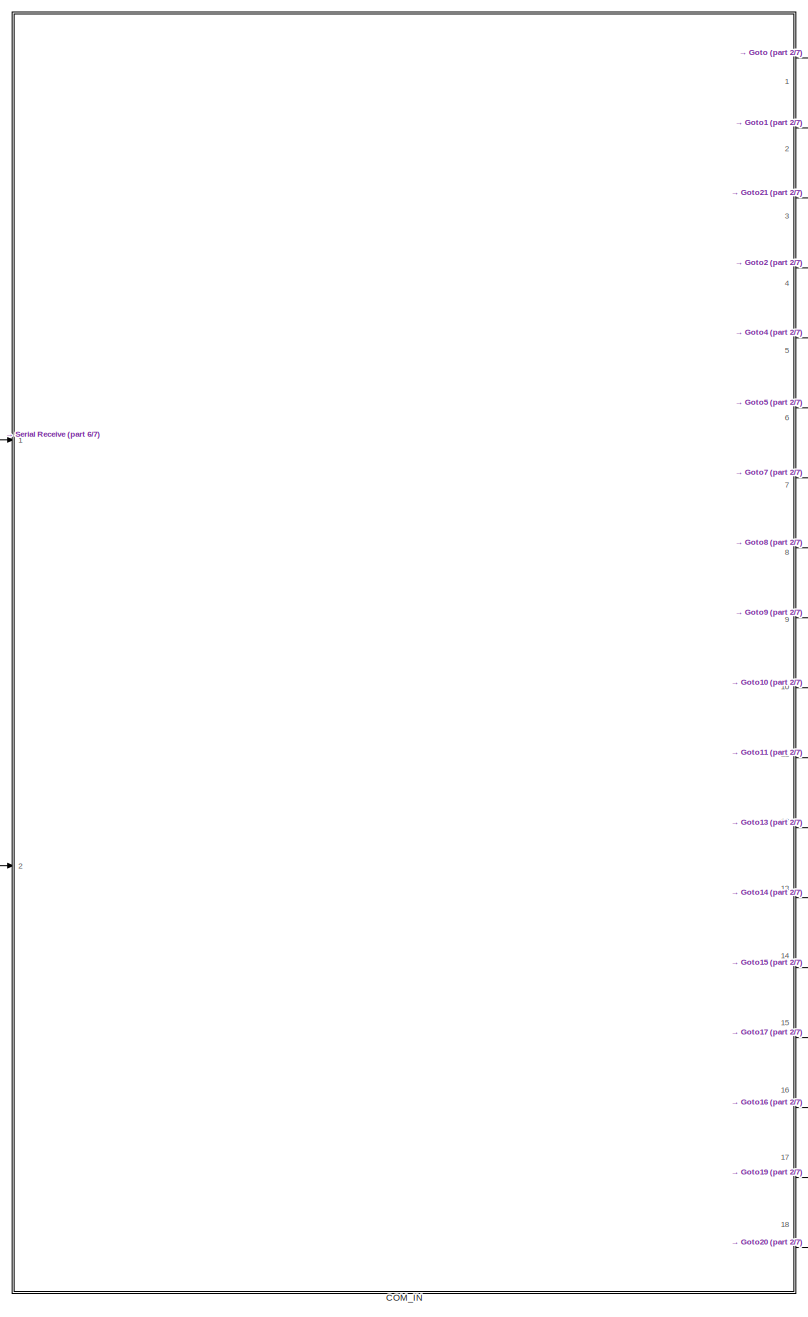
[diagram: root canvas - part 1/7, top left region]
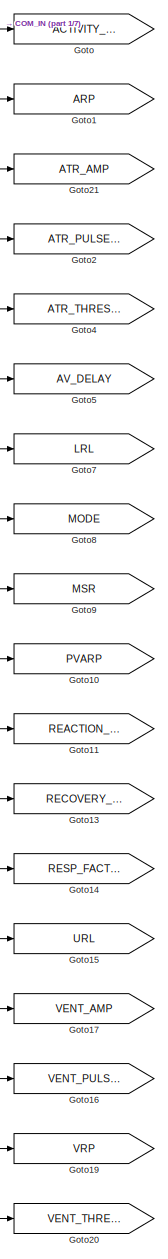
[diagram: root canvas - part 2/7, top center region]
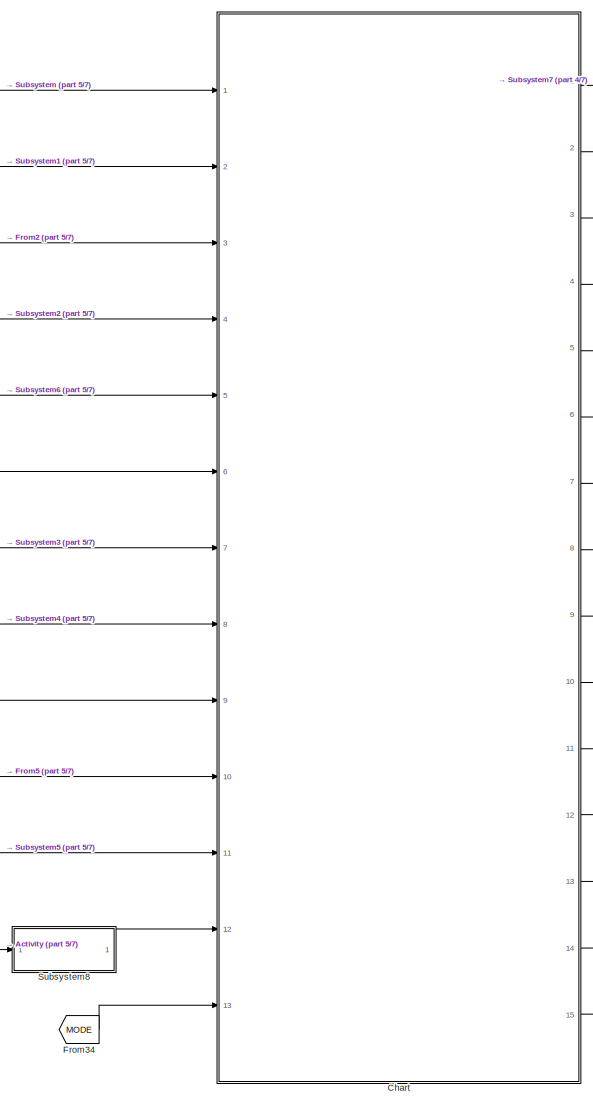
[diagram: root canvas - part 3/7, top right region]
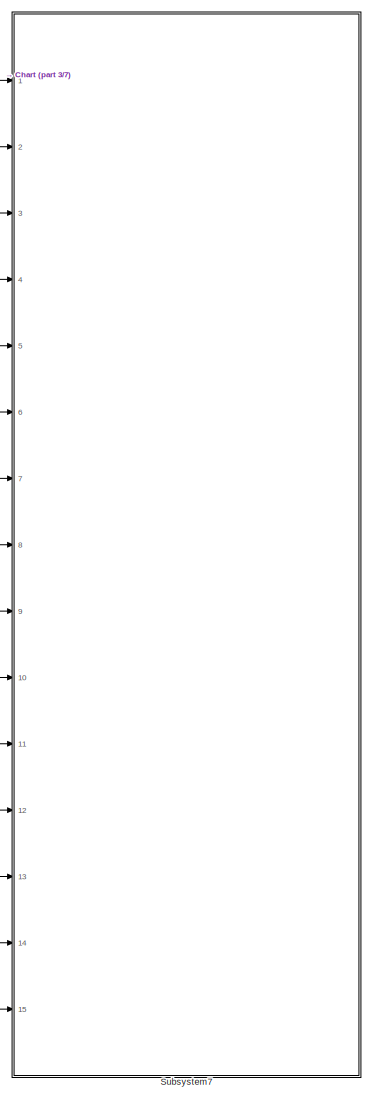
[diagram: root canvas - part 4/7, top right region]
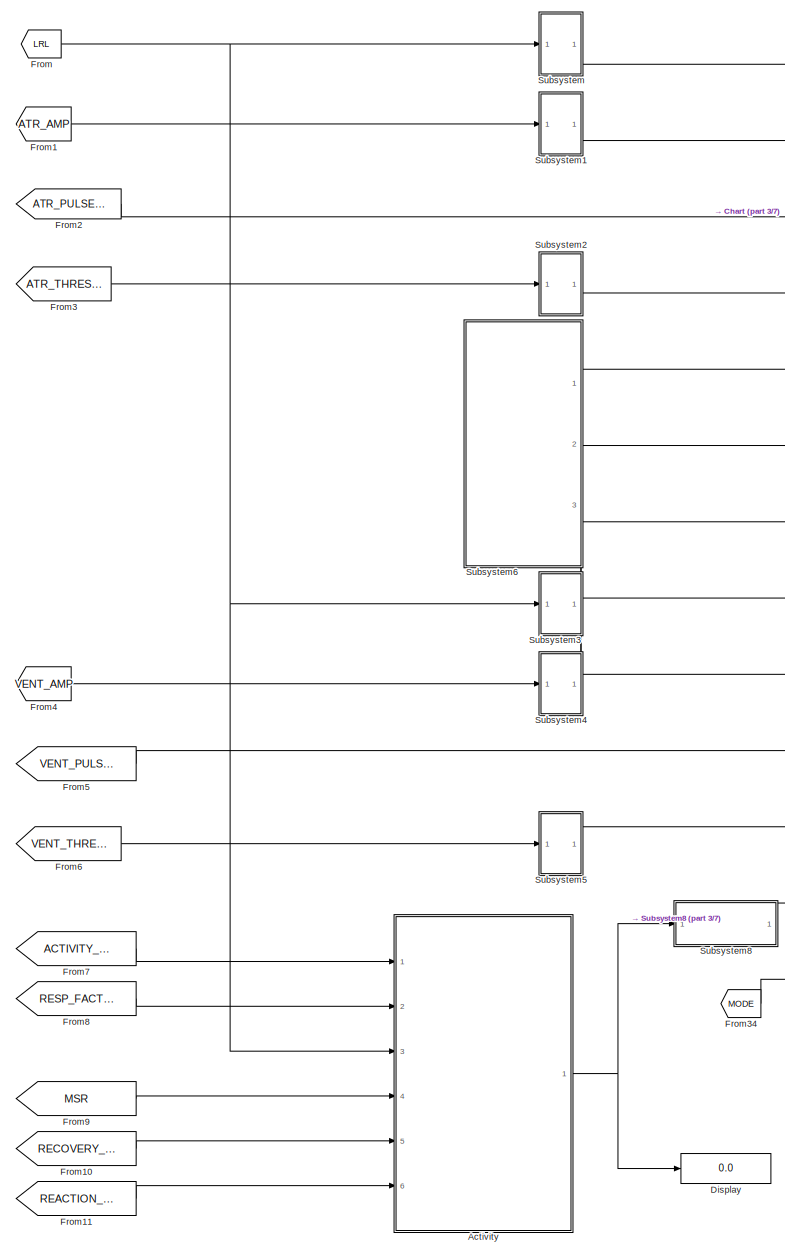
[diagram: root canvas - part 5/7, top center region]
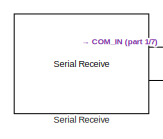
[diagram: root canvas - part 6/7, top left region]
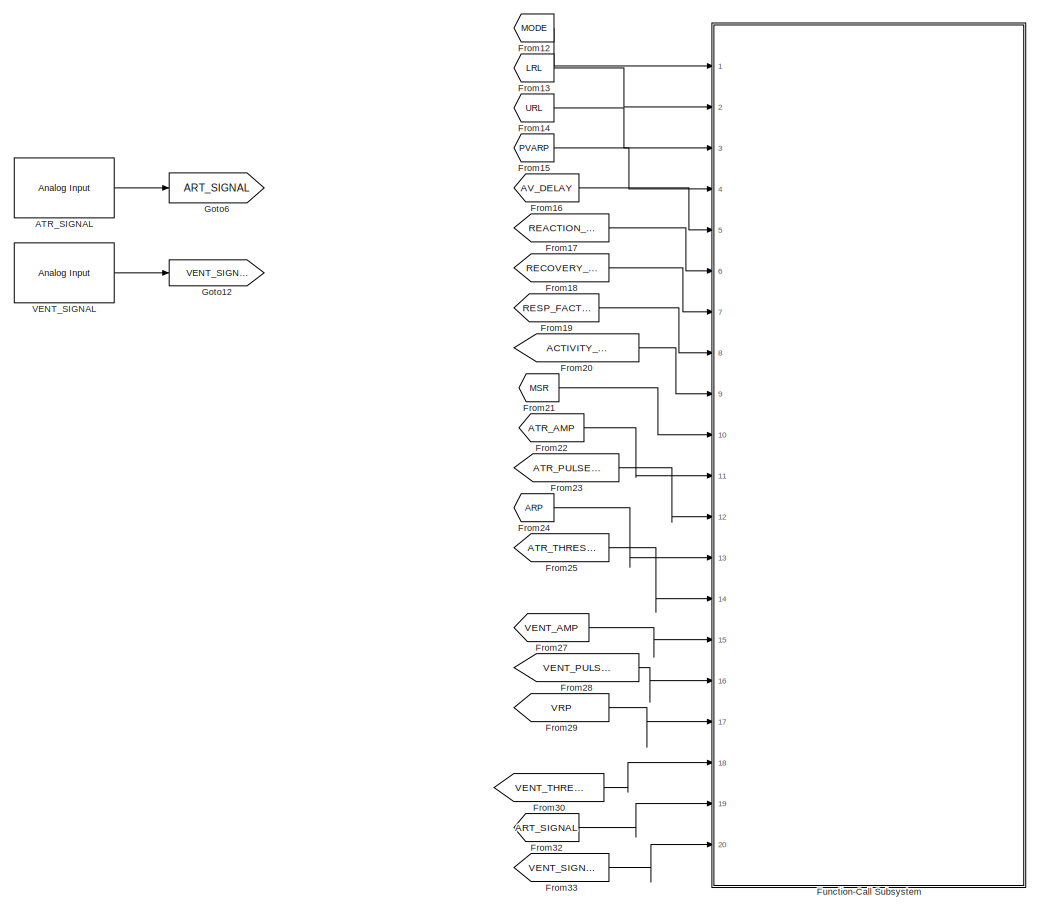
[diagram: root canvas - part 7/7, bottom left region]
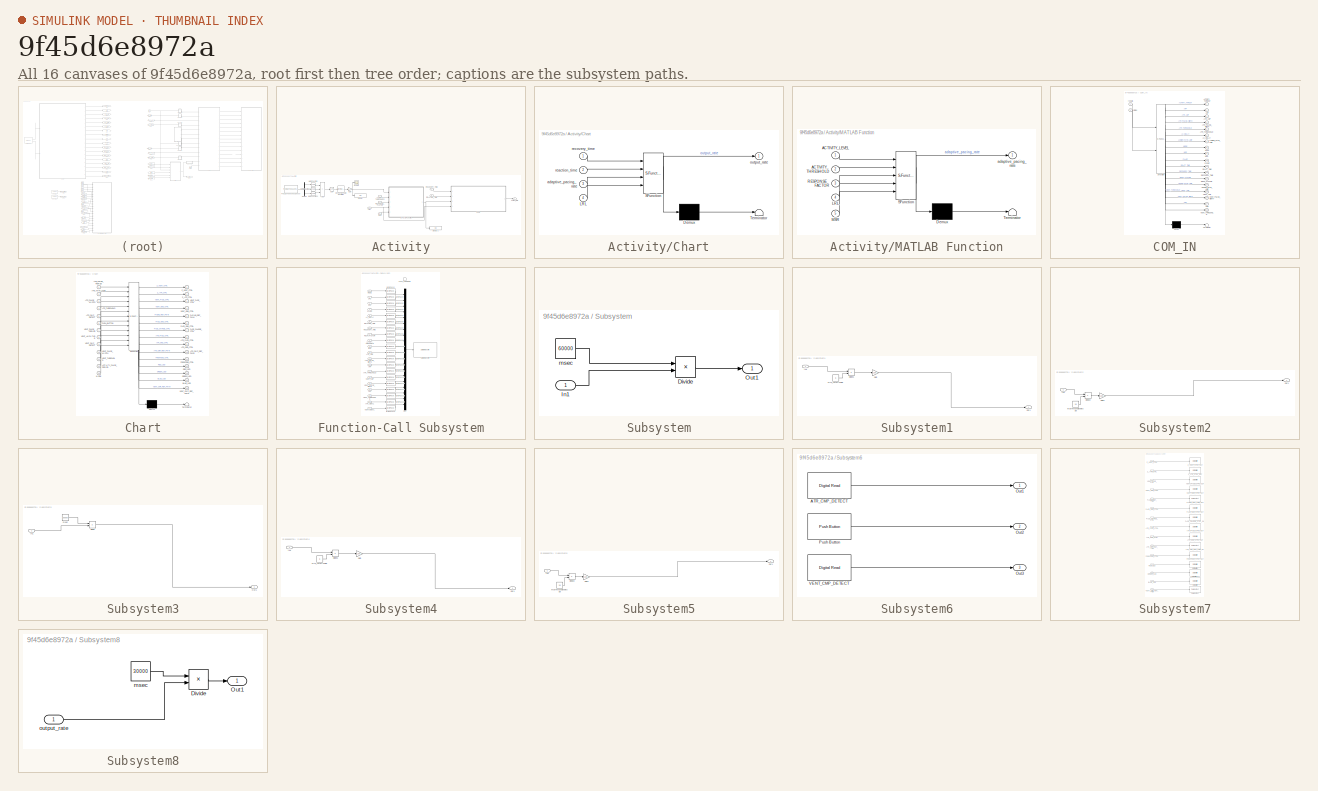
[diagram: thumbnail index - all 16 canvases of the model, root first then tree order]
MODEL slx_9f45d6e8972a
KIND model
CONFIG AbsTol = auto
CONFIG EnableMultiTasking = on
CONFIG FixedStep = 1e-3
CONFIG MaxStep = auto
CONFIG MinStep = auto
CONFIG RelTol = 1e-3
CONFIG SampleTimeConstraint = Unconstrained
CONFIG Solver = FixedStepAuto
CONFIG SolverName = FixedStepAuto
CONFIG StartTime = 0.0
CONFIG StopTime = 30
BLOCK [Reference] ATR_SIGNAL  REF=frdmk64flib/Analog Input
  Ports = [0, 1]
  SourceBlock = frdmk64flib/Analog Input
  SourceProductBaseCode = EC_FRDM_K64F
  SourceType = freedomk64f.AnalogInput
BLOCK [SubSystem] Activity
  Ports = [6, 1]
  RequestExecContextInheritance = off
BLOCK [Inport] Activity/ACTIVITY_THRESHOLD
BLOCK [Sum] Activity/Add
  IconShape = rectangular
  Inputs = +++
  Ports = [3, 1]
BLOCK [SubSystem] Activity/Chart
  ErrorFcn = Stateflow.Translate.translate
  PermitHierarchicalResolution = ExplicitOnly
  Ports = [4, 1]
  RequestExecContextInheritance = off
  SFBlockType = Chart
  TreatAsAtomicUnit = on
BLOCK [Demux] Activity/Chart/ Demux 
  Outputs = 1
  Ports = [1, 1]
BLOCK [S-Function] Activity/Chart/ SFunction 
  EnableBusSupport = on
  FunctionName = sf_sfun
  PortCounts = [4 2]
  Ports = [4, 2]
  SFcnIsStateOwnerBlock = off
  SFunctionDeploymentMode = off
  Tag = Stateflow S-Function 1
BLOCK [Terminator] Activity/Chart/ Terminator 
BLOCK [Inport] Activity/Chart/LRL
  Port = 4
BLOCK [Inport] Activity/Chart/adaptive_pacing_rate
  Port = 3
BLOCK [Outport] Activity/Chart/output_rate
BLOCK [Inport] Activity/Chart/reaction_time
  Port = 2
BLOCK [Inport] Activity/Chart/recovery_time
BLOCK [Demux] Activity/Demux
  Outputs = 3
  Ports = [1, 3]
BLOCK [Display] Activity/Display
  Decimation = 1
  Ports = [1]
BLOCK [Display] Activity/Display1
  Decimation = 1
  Ports = [1]
BLOCK [Reference] Activity/FXOS8700 6-Axes Sensor  REF=frdmk64flib/FXOS8700 6-Axes Sensor
  Ports = [0, 1]
  SourceBlock = frdmk64flib/FXOS8700 6-Axes Sensor
  SourceProductBaseCode = EC_FRDM_K64F
  SourceType = freedomk64f.fxos8700
BLOCK [Gain] Activity/Gain
  Gain = 50
BLOCK [Inport] Activity/LRL
  Port = 3
BLOCK [SubSystem] Activity/MATLAB Function
  ErrorFcn = Stateflow.Translate.translate
  PermitHierarchicalResolution = ExplicitOnly
  Ports = [5, 1]
  RequestExecContextInheritance = off
  SFBlockType = MATLAB Function
  TreatAsAtomicUnit = on
BLOCK [Demux] Activity/MATLAB Function/ Demux 
  Outputs = 1
  Ports = [1, 1]
BLOCK [S-Function] Activity/MATLAB Function/ SFunction 
  EnableBusSupport = on
  FunctionName = sf_sfun
  PortCounts = [5 2]
  Ports = [5, 2]
  SFcnIsStateOwnerBlock = off
  SFunctionDeploymentMode = off
  Tag = Stateflow S-Function 2
BLOCK [Terminator] Activity/MATLAB Function/ Terminator 
BLOCK [Inport] Activity/MATLAB Function/ACTIVITY_LEVEL
BLOCK [Inport] Activity/MATLAB Function/ACTIVITY_THRESHOLD
  Port = 2
BLOCK [Inport] Activity/MATLAB Function/LRL
  Port = 4
BLOCK [Inport] Activity/MATLAB Function/MSR
  Port = 5
BLOCK [Inport] Activity/MATLAB Function/RESPONSE_FACTOR
  Port = 3
BLOCK [Outport] Activity/MATLAB Function/adaptive_pacing_rate
BLOCK [Inport] Activity/MSR
  Port = 4
BLOCK [Math] Activity/Math Function
  Operator = square
  Ports = [1, 1]
BLOCK [Math] Activity/Math Function1
  Operator = square
  Ports = [1, 1]
BLOCK [Math] Activity/Math Function2
  Operator = square
  Ports = [1, 1]
BLOCK [Reference] Activity/Moving Standard Deviation  REF=dspstat3/Moving
Standard
Deviation
  Ports = [1, 1]
  SourceBlock = dspstat3/Moving\nStandard\nDeviation
  SourceProductBaseCode = DS
  SourceType = dsp.simulink.MovingStandardDeviation
BLOCK [Inport] Activity/REACTION_TIME
  Port = 6
BLOCK [Inport] Activity/RECOVERY_TIME
  Port = 5
BLOCK [Inport] Activity/RESPONSE_FACTOR
  Port = 2
BLOCK [Scope] Activity/Scope
  Floating = off
  NumInputPorts = 1
  Ports = [1]
  ScopeSpecificationString = Simulink.scopes.TimeScopeBlockCfg('CurrentConfiguration', extmgr.ConfigurationSet(extmgr.Configuration('Core','General UI',true),extmgr.Configuration('Core','Source UI',true),extmgr.Configuration('Sources','WiredSimulink',true),extmgr.Configuration('Visuals','Time Domain',true),extmgr.Configuration('Tools','Plot Navigation',true),extmgr.Configuration('Tools','Measurements',true)),'Version','2024a'...<+1ch>
BLOCK [Sqrt] Activity/Sqrt
BLOCK [Outport] Activity/output_rate
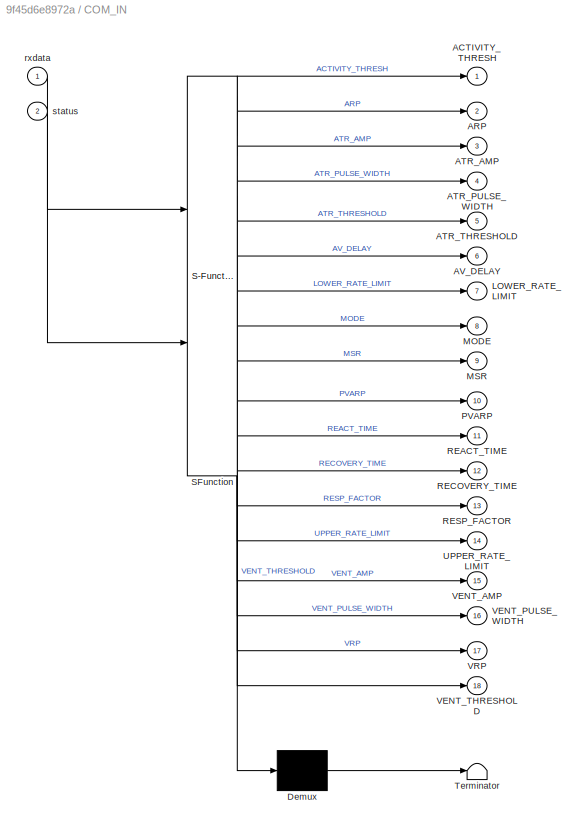
BLOCK [SubSystem] COM_IN
  ErrorFcn = Stateflow.Translate.translate
  PermitHierarchicalResolution = ExplicitOnly
  Ports = [2, 18]
  RequestExecContextInheritance = off
  SFBlockType = Chart
  TreatAsAtomicUnit = on
BLOCK [Demux] COM_IN/ Demux 
  Outputs = 1
  Ports = [1, 1]
BLOCK [S-Function] COM_IN/ SFunction 
  EnableBusSupport = on
  FunctionName = sf_sfun
  PortCounts = [2 19]
  Ports = [2, 19]
  SFcnIsStateOwnerBlock = off
  SFunctionDeploymentMode = off
  Tag = Stateflow S-Function 4
BLOCK [Terminator] COM_IN/ Terminator 
BLOCK [Outport] COM_IN/ACTIVITY_THRESH
BLOCK [Outport] COM_IN/ARP
  Port = 2
BLOCK [Outport] COM_IN/ATR_AMP
  Port = 3
BLOCK [Outport] COM_IN/ATR_PULSE_WIDTH
  Port = 4
BLOCK [Outport] COM_IN/ATR_THRESHOLD
  Port = 5
BLOCK [Outport] COM_IN/AV_DELAY
  Port = 6
BLOCK [Outport] COM_IN/LOWER_RATE_LIMIT
  Port = 7
BLOCK [Outport] COM_IN/MODE
  Port = 8
BLOCK [Outport] COM_IN/MSR
  Port = 9
BLOCK [Outport] COM_IN/PVARP
  Port = 10
BLOCK [Outport] COM_IN/REACT_TIME
  Port = 11
BLOCK [Outport] COM_IN/RECOVERY_TIME
  Port = 12
BLOCK [Outport] COM_IN/RESP_FACTOR
  Port = 13
BLOCK [Outport] COM_IN/UPPER_RATE_LIMIT
  Port = 14
BLOCK [Outport] COM_IN/VENT_AMP
  Port = 15
BLOCK [Outport] COM_IN/VENT_PULSE_WIDTH
  Port = 16
BLOCK [Outport] COM_IN/VENT_THRESHOLD
  Port = 18
BLOCK [Outport] COM_IN/VRP
  Port = 17
BLOCK [Inport] COM_IN/rxdata
BLOCK [Inport] COM_IN/status
  Port = 2
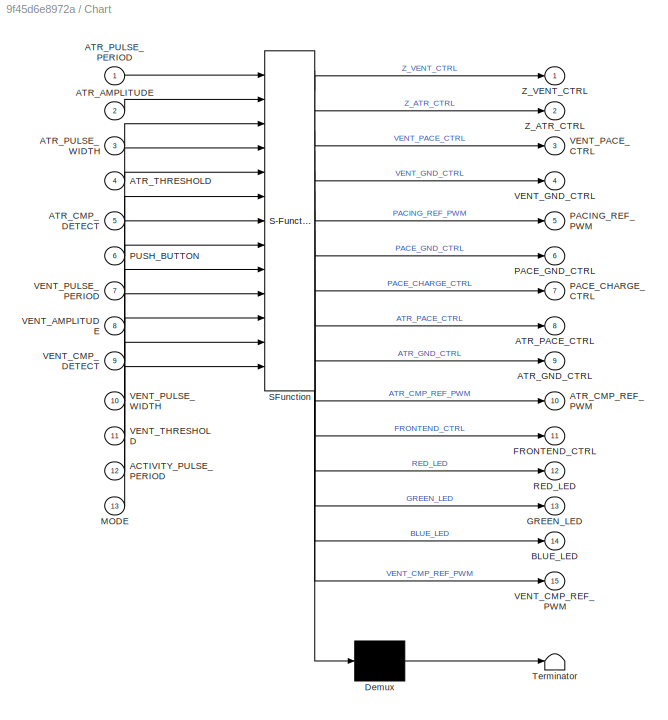
BLOCK [SubSystem] Chart
  ErrorFcn = Stateflow.Translate.translate
  PermitHierarchicalResolution = ExplicitOnly
  PortSchema = {"entries":[{"content":{"sides":[{"content":{"connectorIds":["In1","In2","In3","In4","In5","In6","In9","In7","In8","In10","In11","In12","In13"]},"type":"ConnectorPlacement.EquallySpacedRectSide","uuid":"1d074b9c-7cc8-4198-85a6-5618993573f0"},{"content":{"connectorIds":["Out1","Out2","Out3","Out4","Out5","Out6","Out7","Out8","Out9","Out10","Out11","Out12","Out13","Out14","Out15"],"side":"RIGHT"},"t...<+422ch>
  Ports = [13, 15]
  RequestExecContextInheritance = off
  SFBlockType = Chart
  TreatAsAtomicUnit = on
BLOCK [Demux] Chart/ Demux 
  Outputs = 1
  Ports = [1, 1]
BLOCK [S-Function] Chart/ SFunction 
  EnableBusSupport = on
  FunctionName = sf_sfun
  PortCounts = [13 16]
  Ports = [13, 16]
  SFcnIsStateOwnerBlock = off
  SFunctionDeploymentMode = off
  Tag = Stateflow S-Function 3
BLOCK [Terminator] Chart/ Terminator 
BLOCK [Inport] Chart/ACTIVITY_PULSE_PERIOD
  Port = 12
BLOCK [Inport] Chart/ATR_AMPLITUDE
  Port = 2
BLOCK [Inport] Chart/ATR_CMP_DETECT
  Port = 5
BLOCK [Outport] Chart/ATR_CMP_REF_PWM
  Port = 10
BLOCK [Outport] Chart/ATR_GND_CTRL
  Port = 9
BLOCK [Outport] Chart/ATR_PACE_CTRL
  Port = 8
BLOCK [Inport] Chart/ATR_PULSE_PERIOD
BLOCK [Inport] Chart/ATR_PULSE_WIDTH
  Port = 3
BLOCK [Inport] Chart/ATR_THRESHOLD
  Port = 4
BLOCK [Outport] Chart/BLUE_LED
  Port = 14
BLOCK [Outport] Chart/FRONTEND_CTRL
  Port = 11
BLOCK [Outport] Chart/GREEN_LED
  Port = 13
BLOCK [Inport] Chart/MODE
  Port = 13
BLOCK [Outport] Chart/PACE_CHARGE_CTRL
  Port = 7
BLOCK [Outport] Chart/PACE_GND_CTRL
  Port = 6
BLOCK [Outport] Chart/PACING_REF_PWM
  Port = 5
BLOCK [Inport] Chart/PUSH_BUTTON
  Port = 6
BLOCK [Outport] Chart/RED_LED
  Port = 12
BLOCK [Inport] Chart/VENT_AMPLITUDE
  Port = 8
BLOCK [Inport] Chart/VENT_CMP_DETECT
  Port = 9
BLOCK [Outport] Chart/VENT_CMP_REF_PWM
  Port = 15
BLOCK [Outport] Chart/VENT_GND_CTRL
  Port = 4
BLOCK [Outport] Chart/VENT_PACE_CTRL
  Port = 3
BLOCK [Inport] Chart/VENT_PULSE_PERIOD
  Port = 7
BLOCK [Inport] Chart/VENT_PULSE_WIDTH
  Port = 10
BLOCK [Inport] Chart/VENT_THRESHOLD
  Port = 11
BLOCK [Outport] Chart/Z_ATR_CTRL
  Port = 2
BLOCK [Outport] Chart/Z_VENT_CTRL
BLOCK [Display] Display
  Decimation = 1
  Ports = [1]
BLOCK [From] From
  GotoTag = LRL
  TagVisibility = global
BLOCK [From] From1
  GotoTag = ATR_AMP
  TagVisibility = global
BLOCK [From] From10
  GotoTag = RECOVERY_TIME
  TagVisibility = global
BLOCK [From] From11
  GotoTag = REACTION_TIME
  TagVisibility = global
BLOCK [From] From12
  GotoTag = MODE
  TagVisibility = global
BLOCK [From] From13
  GotoTag = LRL
  TagVisibility = global
BLOCK [From] From14
  GotoTag = URL
  TagVisibility = global
BLOCK [From] From15
  GotoTag = PVARP
  TagVisibility = global
BLOCK [From] From16
  GotoTag = AV_DELAY
  TagVisibility = global
BLOCK [From] From17
  GotoTag = REACTION_TIME
  TagVisibility = global
BLOCK [From] From18
  GotoTag = RECOVERY_TIME
  TagVisibility = global
BLOCK [From] From19
  GotoTag = RESP_FACTOR
  TagVisibility = global
BLOCK [From] From2
  GotoTag = ATR_PULSE_WIDTH
  TagVisibility = global
BLOCK [From] From20
  GotoTag = ACTIVITY_THRESHOLD
  TagVisibility = global
BLOCK [From] From21
  GotoTag = MSR
  TagVisibility = global
BLOCK [From] From22
  GotoTag = ATR_AMP
  TagVisibility = global
BLOCK [From] From23
  GotoTag = ATR_PULSE_WIDTH
  TagVisibility = global
BLOCK [From] From24
  GotoTag = ARP
  TagVisibility = global
BLOCK [From] From25
  GotoTag = ATR_THRESHOLD
  TagVisibility = global
BLOCK [From] From27
  GotoTag = VENT_AMP
  TagVisibility = global
BLOCK [From] From28
  GotoTag = VENT_PULSE_WIDTH
  TagVisibility = global
BLOCK [From] From29
  GotoTag = VRP
  TagVisibility = global
BLOCK [From] From3
  GotoTag = ATR_THRESHOLD
  TagVisibility = global
BLOCK [From] From30
  GotoTag = VENT_THRESHOLD
  TagVisibility = global
BLOCK [From] From32
  GotoTag = ART_SIGNAL
  TagVisibility = global
BLOCK [From] From33
  GotoTag = VENT_SIGNAL
  TagVisibility = global
BLOCK [From] From34
  GotoTag = MODE
  TagVisibility = global
BLOCK [From] From4
  GotoTag = VENT_AMP
  TagVisibility = global
BLOCK [From] From5
  GotoTag = VENT_PULSE_WIDTH
  TagVisibility = global
BLOCK [From] From6
  GotoTag = VENT_THRESHOLD
  TagVisibility = global
BLOCK [From] From7
  GotoTag = ACTIVITY_THRESHOLD
  TagVisibility = global
BLOCK [From] From8
  GotoTag = RESP_FACTOR
  TagVisibility = global
BLOCK [From] From9
  GotoTag = MSR
  TagVisibility = global
BLOCK [SubSystem] Function-Call Subsystem
  Ports = [20, 0, 0, 1]
  RequestExecContextInheritance = off
  TreatAsAtomicUnit = on
BLOCK [Inport] Function-Call Subsystem/ACTIVITY_TRESHOLD
  Port = 9
BLOCK [Inport] Function-Call Subsystem/ARP
  Port = 13
BLOCK [Inport] Function-Call Subsystem/ATR_AMP
  Port = 11
BLOCK [Inport] Function-Call Subsystem/ATR_PULSE_WIDTH
  Port = 12
BLOCK [Inport] Function-Call Subsystem/ATR_SIGNAL
  Port = 19
BLOCK [Inport] Function-Call Subsystem/ATR_THRESHOLD
  Port = 14
BLOCK [Inport] Function-Call Subsystem/AV_DELAY
  LockScale = on
  Port = 5
BLOCK [Reference] Function-Call Subsystem/Byte Pack1  REF=etargetslib/Byte Pack
  Ports = [1, 1]
  SourceBlock = etargetslib/Byte Pack
  SourceProductBaseCode = ME
  SourceType = Byte pack
BLOCK [Reference] Function-Call Subsystem/Byte Pack10  REF=etargetslib/Byte Pack
  Ports = [1, 1]
  SourceBlock = etargetslib/Byte Pack
  SourceProductBaseCode = ME
  SourceType = Byte pack
BLOCK [Reference] Function-Call Subsystem/Byte Pack11  REF=etargetslib/Byte Pack
  Ports = [1, 1]
  SourceBlock = etargetslib/Byte Pack
  SourceProductBaseCode = ME
  SourceType = Byte pack
BLOCK [Reference] Function-Call Subsystem/Byte Pack12  REF=etargetslib/Byte Pack
  Ports = [1, 1]
  SourceBlock = etargetslib/Byte Pack
  SourceProductBaseCode = ME
  SourceType = Byte pack
BLOCK [Reference] Function-Call Subsystem/Byte Pack13  REF=etargetslib/Byte Pack
  Ports = [1, 1]
  SourceBlock = etargetslib/Byte Pack
  SourceProductBaseCode = ME
  SourceType = Byte pack
BLOCK [Reference] Function-Call Subsystem/Byte Pack14  REF=etargetslib/Byte Pack
  Ports = [1, 1]
  SourceBlock = etargetslib/Byte Pack
  SourceProductBaseCode = ME
  SourceType = Byte pack
BLOCK [Reference] Function-Call Subsystem/Byte Pack15  REF=etargetslib/Byte Pack
  Ports = [1, 1]
  SourceBlock = etargetslib/Byte Pack
  SourceProductBaseCode = ME
  SourceType = Byte pack
BLOCK [Reference] Function-Call Subsystem/Byte Pack16  REF=etargetslib/Byte Pack
  Ports = [1, 1]
  SourceBlock = etargetslib/Byte Pack
  SourceProductBaseCode = ME
  SourceType = Byte pack
BLOCK [Reference] Function-Call Subsystem/Byte Pack17  REF=etargetslib/Byte Pack
  Ports = [1, 1]
  SourceBlock = etargetslib/Byte Pack
  SourceProductBaseCode = ME
  SourceType = Byte pack
BLOCK [Reference] Function-Call Subsystem/Byte Pack18  REF=etargetslib/Byte Pack
  Ports = [1, 1]
  SourceBlock = etargetslib/Byte Pack
  SourceProductBaseCode = ME
  SourceType = Byte pack
BLOCK [Reference] Function-Call Subsystem/Byte Pack19  REF=etargetslib/Byte Pack
  Ports = [1, 1]
  SourceBlock = etargetslib/Byte Pack
  SourceProductBaseCode = ME
  SourceType = Byte pack
BLOCK [Reference] Function-Call Subsystem/Byte Pack2  REF=etargetslib/Byte Pack
  Ports = [1, 1]
  SourceBlock = etargetslib/Byte Pack
  SourceProductBaseCode = ME
  SourceType = Byte pack
BLOCK [Reference] Function-Call Subsystem/Byte Pack20  REF=etargetslib/Byte Pack
  Ports = [1, 1]
  SourceBlock = etargetslib/Byte Pack
  SourceProductBaseCode = ME
  SourceType = Byte pack
BLOCK [Reference] Function-Call Subsystem/Byte Pack3  REF=etargetslib/Byte Pack
  Ports = [1, 1]
  SourceBlock = etargetslib/Byte Pack
  SourceProductBaseCode = ME
  SourceType = Byte pack
BLOCK [Reference] Function-Call Subsystem/Byte Pack4  REF=etargetslib/Byte Pack
  Ports = [1, 1]
  SourceBlock = etargetslib/Byte Pack
  SourceProductBaseCode = ME
  SourceType = Byte pack
BLOCK [Reference] Function-Call Subsystem/Byte Pack5  REF=etargetslib/Byte Pack
  Ports = [1, 1]
  SourceBlock = etargetslib/Byte Pack
  SourceProductBaseCode = ME
  SourceType = Byte pack
BLOCK [Reference] Function-Call Subsystem/Byte Pack6  REF=etargetslib/Byte Pack
  Ports = [1, 1]
  SourceBlock = etargetslib/Byte Pack
  SourceProductBaseCode = ME
  SourceType = Byte pack
BLOCK [Reference] Function-Call Subsystem/Byte Pack7  REF=etargetslib/Byte Pack
  Ports = [1, 1]
  SourceBlock = etargetslib/Byte Pack
  SourceProductBaseCode = ME
  SourceType = Byte pack
BLOCK [Reference] Function-Call Subsystem/Byte Pack8  REF=etargetslib/Byte Pack
  Ports = [1, 1]
  SourceBlock = etargetslib/Byte Pack
  SourceProductBaseCode = ME
  SourceType = Byte pack
BLOCK [Reference] Function-Call Subsystem/Byte Pack9  REF=etargetslib/Byte Pack
  Ports = [1, 1]
  SourceBlock = etargetslib/Byte Pack
  SourceProductBaseCode = ME
  SourceType = Byte pack
BLOCK [Inport] Function-Call Subsystem/LRL
  Port = 2
BLOCK [Inport] Function-Call Subsystem/MODE
BLOCK [Inport] Function-Call Subsystem/MSR
  Port = 10
BLOCK [Mux] Function-Call Subsystem/Mux
  DisplayOption = bar
  Inputs = 20
  Ports = [20, 1]
BLOCK [Inport] Function-Call Subsystem/PVARP
  Port = 4
BLOCK [Inport] Function-Call Subsystem/REACTION_TIME
  Port = 6
BLOCK [Inport] Function-Call Subsystem/RECOVERY_TIME
  Port = 7
BLOCK [Inport] Function-Call Subsystem/RESP_FACTOR
  Port = 8
BLOCK [Reference] Function-Call Subsystem/Serial Transmit  REF=frdmk64flib/Serial Transmit
  Ports = [1]
  SourceBlock = frdmk64flib/Serial Transmit
  SourceProductBaseCode = EC_FRDM_K64F
  SourceType = freedomk64f.SCIWrite
BLOCK [Inport] Function-Call Subsystem/URL
  Port = 3
BLOCK [Inport] Function-Call Subsystem/VENT_AMP
  Port = 15
BLOCK [Inport] Function-Call Subsystem/VENT_PULSE_WIDTH
  Port = 16
BLOCK [Inport] Function-Call Subsystem/VENT_SIGNAL
  Port = 20
BLOCK [Inport] Function-Call Subsystem/VENT_THRESHOLD
  Port = 18
BLOCK [Inport] Function-Call Subsystem/VRP
  Port = 17
BLOCK [TriggerPort] Function-Call Subsystem/send_parameters
  FunctionName = send_parameters
  IsSimulinkFunction = on
  Ports = []
  StatesWhenEnabling = held
  TriggerType = function-call
  VariantControl = Variant
BLOCK [Goto] Goto
  GotoTag = ACTIVITY_THRESHOLD
  TagVisibility = global
BLOCK [Goto] Goto1
  GotoTag = ARP
  TagVisibility = global
BLOCK [Goto] Goto10
  GotoTag = PVARP
  TagVisibility = global
BLOCK [Goto] Goto11
  GotoTag = REACTION_TIME
  TagVisibility = global
BLOCK [Goto] Goto12
  GotoTag = VENT_SIGNAL
  TagVisibility = global
BLOCK [Goto] Goto13
  GotoTag = RECOVERY_TIME
  TagVisibility = global
BLOCK [Goto] Goto14
  GotoTag = RESP_FACTOR
  TagVisibility = global
BLOCK [Goto] Goto15
  GotoTag = URL
  TagVisibility = global
BLOCK [Goto] Goto16
  GotoTag = VENT_PULSE_WIDTH
  TagVisibility = global
BLOCK [Goto] Goto17
  GotoTag = VENT_AMP
  TagVisibility = global
BLOCK [Goto] Goto19
  GotoTag = VRP
  TagVisibility = global
BLOCK [Goto] Goto2
  GotoTag = ATR_PULSE_WIDTH
  TagVisibility = global
BLOCK [Goto] Goto20
  GotoTag = VENT_THRESHOLD
  TagVisibility = global
BLOCK [Goto] Goto21
  GotoTag = ATR_AMP
  TagVisibility = global
BLOCK [Goto] Goto4
  GotoTag = ATR_THRESHOLD
  TagVisibility = global
BLOCK [Goto] Goto5
  GotoTag = AV_DELAY
  TagVisibility = global
BLOCK [Goto] Goto6
  GotoTag = ART_SIGNAL
  TagVisibility = global
BLOCK [Goto] Goto7
  GotoTag = LRL
  TagVisibility = global
BLOCK [Goto] Goto8
  GotoTag = MODE
  TagVisibility = global
BLOCK [Goto] Goto9
  GotoTag = MSR
  TagVisibility = global
BLOCK [Reference] Serial Receive  REF=frdmk64flib/Serial Receive
  Ports = [0, 2]
  SourceBlock = frdmk64flib/Serial Receive
  SourceProductBaseCode = EC_FRDM_K64F
  SourceType = freedomk64f.SCIRead
BLOCK [SubSystem] Subsystem
  Ports = [1, 1]
  RequestExecContextInheritance = off
BLOCK [Product] Subsystem/Divide
  Inputs = */
  Ports = [2, 1]
BLOCK [Inport] Subsystem/In1
BLOCK [Outport] Subsystem/Out1
BLOCK [Constant] Subsystem/msec
  Value = 60000
BLOCK [SubSystem] Subsystem1
  Ports = [1, 1]
  RequestExecContextInheritance = off
BLOCK [Product] Subsystem1/Divide1
  Inputs = */
  Ports = [2, 1]
BLOCK [Gain] Subsystem1/Gain
  Gain = 100
BLOCK [Inport] Subsystem1/In1
BLOCK [Constant] Subsystem1/MAX_AMPLITUDE
  Value = 5
BLOCK [Outport] Subsystem1/Out1
BLOCK [SubSystem] Subsystem2
  Ports = [1, 1]
  RequestExecContextInheritance = off
BLOCK [Product] Subsystem2/Divide2
  Inputs = */
  Ports = [2, 1]
BLOCK [Gain] Subsystem2/Gain1
  Gain = 100
BLOCK [Inport] Subsystem2/In1
BLOCK [Outport] Subsystem2/Out1
BLOCK [Constant] Subsystem2/maxThresholdVoltage
  Value = 3.3
BLOCK [SubSystem] Subsystem3
  Ports = [1, 1]
  RequestExecContextInheritance = off
BLOCK [Product] Subsystem3/Divide
  Inputs = */
  Ports = [2, 1]
BLOCK [Inport] Subsystem3/In1
BLOCK [Outport] Subsystem3/Out1
BLOCK [Constant] Subsystem3/msec
  Value = 60000
BLOCK [SubSystem] Subsystem4
  Ports = [1, 1]
  RequestExecContextInheritance = off
BLOCK [Product] Subsystem4/Divide1
  Inputs = */
  Ports = [2, 1]
BLOCK [Gain] Subsystem4/Gain
  Gain = 100
BLOCK [Inport] Subsystem4/In1
BLOCK [Constant] Subsystem4/MAX_AMPLITUDE
  Value = 5
BLOCK [Outport] Subsystem4/Out1
BLOCK [SubSystem] Subsystem5
  Ports = [1, 1]
  RequestExecContextInheritance = off
BLOCK [Product] Subsystem5/Divide2
  Inputs = */
  Ports = [2, 1]
BLOCK [Gain] Subsystem5/Gain1
  Gain = 100
BLOCK [Inport] Subsystem5/In1
BLOCK [Outport] Subsystem5/Out1
BLOCK [Constant] Subsystem5/maxThresholdVoltage
  Value = 3.3
BLOCK [SubSystem] Subsystem6
  Ports = [0, 3]
  RequestExecContextInheritance = off
BLOCK [Reference] Subsystem6/ATR_CMP_DETECT  REF=frdmk64flib/Digital Read
  Ports = [0, 1]
  SourceBlock = frdmk64flib/Digital Read
  SourceProductBaseCode = EC_FRDM_K64F
  SourceType = freedomk64f.DigitalRead
BLOCK [Outport] Subsystem6/Out1
BLOCK [Outport] Subsystem6/Out2
  Port = 2
BLOCK [Outport] Subsystem6/Out3
  Port = 3
BLOCK [Reference] Subsystem6/Push Button  REF=frdmk64flib/Push Button
  Ports = [0, 1]
  SourceBlock = frdmk64flib/Push Button
  SourceProductBaseCode = EC_FRDM_K64F
  SourceType = freedomk64f.PushButton
BLOCK [Reference] Subsystem6/VENT_CMP_DETECT  REF=frdmk64flib/Digital Read
  Ports = [0, 1]
  SourceBlock = frdmk64flib/Digital Read
  SourceProductBaseCode = EC_FRDM_K64F
  SourceType = freedomk64f.DigitalRead
BLOCK [SubSystem] Subsystem7
  Ports = [15]
  RequestExecContextInheritance = off
BLOCK [Inport] Subsystem7/ATR_CMP_REF_PWM
  Port = 10
BLOCK [Reference] Subsystem7/ATR_CMP_REF_PWM_OUT  REF=frdmk64flib/PWM Output
  Ports = [1]
  SourceBlock = frdmk64flib/PWM Output
  SourceProductBaseCode = EC_FRDM_K64F
  SourceType = freedomk64f.PWMOutput
BLOCK [Inport] Subsystem7/ATR_GND_CTRL
  Port = 9
BLOCK [Reference] Subsystem7/ATR_GND_CTRL_OUT  REF=frdmk64flib/Digital Write
  Ports = [1]
  SourceBlock = frdmk64flib/Digital Write
  SourceProductBaseCode = EC_FRDM_K64F
  SourceType = freedomk64f.DigitalWrite
BLOCK [Inport] Subsystem7/ATR_PACE_CTRL
  Port = 8
BLOCK [Reference] Subsystem7/ATR_PACE_CTRL_OUT  REF=frdmk64flib/Digital Write
  Ports = [1]
  SourceBlock = frdmk64flib/Digital Write
  SourceProductBaseCode = EC_FRDM_K64F
  SourceType = freedomk64f.DigitalWrite
BLOCK [Inport] Subsystem7/BLUE_LED
  Port = 14
BLOCK [Reference] Subsystem7/Digital Write  REF=frdmk64flib/Digital Write
  Ports = [1]
  SourceBlock = frdmk64flib/Digital Write
  SourceProductBaseCode = EC_FRDM_K64F
  SourceType = freedomk64f.DigitalWrite
BLOCK [Reference] Subsystem7/Digital Write10  REF=frdmk64flib/Digital Write
  Ports = [1]
  SourceBlock = frdmk64flib/Digital Write
  SourceProductBaseCode = EC_FRDM_K64F
  SourceType = freedomk64f.DigitalWrite
BLOCK [Reference] Subsystem7/Digital Write9  REF=frdmk64flib/Digital Write
  Ports = [1]
  SourceBlock = frdmk64flib/Digital Write
  SourceProductBaseCode = EC_FRDM_K64F
  SourceType = freedomk64f.DigitalWrite
BLOCK [Inport] Subsystem7/FRONTEND_CTRL
  Port = 11
BLOCK [Reference] Subsystem7/FRONTEND_CTRL_OUT  REF=frdmk64flib/Digital Write
  Ports = [1]
  SourceBlock = frdmk64flib/Digital Write
  SourceProductBaseCode = EC_FRDM_K64F
  SourceType = freedomk64f.DigitalWrite
BLOCK [Inport] Subsystem7/GREEN_LED
  Port = 13
BLOCK [Inport] Subsystem7/PACE_CHARGE_CTRL
  Port = 7
BLOCK [Reference] Subsystem7/PACE_CHARGE_CTRL_OUT  REF=frdmk64flib/Digital Write
  Ports = [1]
  SourceBlock = frdmk64flib/Digital Write
  SourceProductBaseCode = EC_FRDM_K64F
  SourceType = freedomk64f.DigitalWrite
BLOCK [Inport] Subsystem7/PACE_GND_CTRL
  Port = 6
BLOCK [Reference] Subsystem7/PACE_GND_CTRL_OUT  REF=frdmk64flib/Digital Write
  Ports = [1]
  SourceBlock = frdmk64flib/Digital Write
  SourceProductBaseCode = EC_FRDM_K64F
  SourceType = freedomk64f.DigitalWrite
BLOCK [Inport] Subsystem7/PACING_REF_PWM
  Port = 5
BLOCK [Reference] Subsystem7/PACING_REF_PWM_OUT  REF=frdmk64flib/PWM Output
  Ports = [1]
  SourceBlock = frdmk64flib/PWM Output
  SourceProductBaseCode = EC_FRDM_K64F
  SourceType = freedomk64f.PWMOutput
BLOCK [Reference] Subsystem7/PWM Output  REF=frdmk64flib/PWM Output
  Ports = [1]
  SourceBlock = frdmk64flib/PWM Output
  SourceProductBaseCode = EC_FRDM_K64F
  SourceType = freedomk64f.PWMOutput
BLOCK [Inport] Subsystem7/RED_LED
  Port = 12
BLOCK [Inport] Subsystem7/VENT_CMP_REF_PWM
  Port = 15
BLOCK [Inport] Subsystem7/VENT_GND_CTRL
  Port = 4
BLOCK [Reference] Subsystem7/VENT_GND_CTRL_OUT  REF=frdmk64flib/Digital Write
  Ports = [1]
  SourceBlock = frdmk64flib/Digital Write
  SourceProductBaseCode = EC_FRDM_K64F
  SourceType = freedomk64f.DigitalWrite
BLOCK [Inport] Subsystem7/VENT_PACE_CTRL
  Port = 3
BLOCK [Reference] Subsystem7/VENT_PACE_CTRL_OUT  REF=frdmk64flib/Digital Write
  Ports = [1]
  SourceBlock = frdmk64flib/Digital Write
  SourceProductBaseCode = EC_FRDM_K64F
  SourceType = freedomk64f.DigitalWrite
BLOCK [Inport] Subsystem7/Z_ATR_CTRL
  Port = 2
BLOCK [Reference] Subsystem7/Z_ATR_CTRL_OUT  REF=frdmk64flib/Digital Write
  Ports = [1]
  SourceBlock = frdmk64flib/Digital Write
  SourceProductBaseCode = EC_FRDM_K64F
  SourceType = freedomk64f.DigitalWrite
BLOCK [Inport] Subsystem7/Z_VENT_CTRL
BLOCK [Reference] Subsystem7/Z_VENT_CTRL_OUT  REF=frdmk64flib/Digital Write
  Ports = [1]
  SourceBlock = frdmk64flib/Digital Write
  SourceProductBaseCode = EC_FRDM_K64F
  SourceType = freedomk64f.DigitalWrite
BLOCK [SubSystem] Subsystem8
  Ports = [1, 1]
  RequestExecContextInheritance = off
BLOCK [Product] Subsystem8/Divide
  Inputs = */
  Ports = [2, 1]
BLOCK [Outport] Subsystem8/Out1
BLOCK [Constant] Subsystem8/msec
  Value = 30000
BLOCK [Inport] Subsystem8/output_rate
BLOCK [Reference] VENT_SIGNAL  REF=frdmk64flib/Analog Input
  Ports = [0, 1]
  SourceBlock = frdmk64flib/Analog Input
  SourceProductBaseCode = EC_FRDM_K64F
  SourceType = freedomk64f.AnalogInput
LINE ATR_SIGNAL:1 -> Goto6:1
LINE Activity/ACTIVITY_THRESHOLD:1 -> Activity/MATLAB Function:2
LINE Activity/Add:1 -> Activity/Sqrt:1
LINE Activity/Chart:1 -> Activity/output_rate:1
LINE Activity/Demux:1 -> Activity/Math Function:1
LINE Activity/Demux:2 -> Activity/Math Function2:1
LINE Activity/Demux:3 -> Activity/Math Function1:1
LINE Activity/FXOS8700 6-Axes Sensor:1 -> Activity/Demux:1
NET Activity/Gain:1 -> Activity/Display:1, Activity/MATLAB Function:1, Activity/Scope:1
NET Activity/LRL:1 -> Activity/Chart:4, Activity/MATLAB Function:4
NET Activity/MATLAB Function:1 -> Activity/Chart:3, Activity/Display1:1
LINE Activity/MSR:1 -> Activity/MATLAB Function:5
LINE Activity/Math Function1:1 -> Activity/Add:3
LINE Activity/Math Function2:1 -> Activity/Add:2
LINE Activity/Math Function:1 -> Activity/Add:1
LINE Activity/Moving Standard Deviation:1 -> Activity/Gain:1
LINE Activity/REACTION_TIME:1 -> Activity/Chart:2
LINE Activity/RECOVERY_TIME:1 -> Activity/Chart:1
LINE Activity/RESPONSE_FACTOR:1 -> Activity/MATLAB Function:3
LINE Activity/Sqrt:1 -> Activity/Moving Standard Deviation:1
NET Activity:1 -> Display:1, Subsystem8:1
LINE COM_IN:1 -> Goto:1
LINE COM_IN:10 -> Goto10:1
LINE COM_IN:11 -> Goto11:1
LINE COM_IN:12 -> Goto13:1
LINE COM_IN:13 -> Goto14:1
LINE COM_IN:14 -> Goto15:1
LINE COM_IN:15 -> Goto17:1
LINE COM_IN:16 -> Goto16:1
LINE COM_IN:17 -> Goto19:1
LINE COM_IN:18 -> Goto20:1
LINE COM_IN:2 -> Goto1:1
LINE COM_IN:3 -> Goto21:1
LINE COM_IN:4 -> Goto2:1
LINE COM_IN:5 -> Goto4:1
LINE COM_IN:6 -> Goto5:1
LINE COM_IN:7 -> Goto7:1
LINE COM_IN:8 -> Goto8:1
LINE COM_IN:9 -> Goto9:1
LINE Chart:1 -> Subsystem7:1
LINE Chart:10 -> Subsystem7:10
LINE Chart:11 -> Subsystem7:11
LINE Chart:12 -> Subsystem7:12
LINE Chart:13 -> Subsystem7:13
LINE Chart:14 -> Subsystem7:14
LINE Chart:15 -> Subsystem7:15
LINE Chart:2 -> Subsystem7:2
LINE Chart:3 -> Subsystem7:3
LINE Chart:4 -> Subsystem7:4
LINE Chart:5 -> Subsystem7:5
LINE Chart:6 -> Subsystem7:6
LINE Chart:7 -> Subsystem7:7
LINE Chart:8 -> Subsystem7:8
LINE Chart:9 -> Subsystem7:9
LINE From10:1 -> Activity:5
LINE From11:1 -> Activity:6
LINE From12:1 -> Function-Call Subsystem:1
LINE From13:1 -> Function-Call Subsystem:2
LINE From14:1 -> Function-Call Subsystem:3
LINE From15:1 -> Function-Call Subsystem:4
LINE From16:1 -> Function-Call Subsystem:5
LINE From17:1 -> Function-Call Subsystem:6
LINE From18:1 -> Function-Call Subsystem:7
LINE From19:1 -> Function-Call Subsystem:8
LINE From1:1 -> Subsystem1:1
LINE From20:1 -> Function-Call Subsystem:9
LINE From21:1 -> Function-Call Subsystem:10
LINE From22:1 -> Function-Call Subsystem:11
LINE From23:1 -> Function-Call Subsystem:12
LINE From24:1 -> Function-Call Subsystem:13
LINE From25:1 -> Function-Call Subsystem:14
LINE From27:1 -> Function-Call Subsystem:15
LINE From28:1 -> Function-Call Subsystem:16
LINE From29:1 -> Function-Call Subsystem:17
LINE From2:1 -> Chart:3
LINE From30:1 -> Function-Call Subsystem:18
LINE From32:1 -> Function-Call Subsystem:19
LINE From33:1 -> Function-Call Subsystem:20
LINE From34:1 -> Chart:13
LINE From3:1 -> Subsystem2:1
LINE From4:1 -> Subsystem4:1
LINE From5:1 -> Chart:10
LINE From6:1 -> Subsystem5:1
LINE From7:1 -> Activity:1
LINE From8:1 -> Activity:2
LINE From9:1 -> Activity:4
NET From:1 -> Activity:3, Subsystem3:1, Subsystem:1
LINE Function-Call Subsystem/ACTIVITY_TRESHOLD:1 -> Function-Call Subsystem/Byte Pack9:1
LINE Function-Call Subsystem/ARP:1 -> Function-Call Subsystem/Byte Pack13:1
LINE Function-Call Subsystem/ATR_AMP:1 -> Function-Call Subsystem/Byte Pack11:1
LINE Function-Call Subsystem/ATR_PULSE_WIDTH:1 -> Function-Call Subsystem/Byte Pack12:1
LINE Function-Call Subsystem/ATR_SIGNAL:1 -> Function-Call Subsystem/Byte Pack19:1
LINE Function-Call Subsystem/ATR_THRESHOLD:1 -> Function-Call Subsystem/Byte Pack14:1
LINE Function-Call Subsystem/AV_DELAY:1 -> Function-Call Subsystem/Byte Pack1:1
LINE Function-Call Subsystem/Byte Pack10:1 -> Function-Call Subsystem/Mux:10
LINE Function-Call Subsystem/Byte Pack11:1 -> Function-Call Subsystem/Mux:11
LINE Function-Call Subsystem/Byte Pack12:1 -> Function-Call Subsystem/Mux:12
LINE Function-Call Subsystem/Byte Pack13:1 -> Function-Call Subsystem/Mux:13
LINE Function-Call Subsystem/Byte Pack14:1 -> Function-Call Subsystem/Mux:14
LINE Function-Call Subsystem/Byte Pack15:1 -> Function-Call Subsystem/Mux:15
LINE Function-Call Subsystem/Byte Pack16:1 -> Function-Call Subsystem/Mux:16
LINE Function-Call Subsystem/Byte Pack17:1 -> Function-Call Subsystem/Mux:17
LINE Function-Call Subsystem/Byte Pack18:1 -> Function-Call Subsystem/Mux:18
LINE Function-Call Subsystem/Byte Pack19:1 -> Function-Call Subsystem/Mux:19
LINE Function-Call Subsystem/Byte Pack1:1 -> Function-Call Subsystem/Mux:5
LINE Function-Call Subsystem/Byte Pack20:1 -> Function-Call Subsystem/Mux:20
LINE Function-Call Subsystem/Byte Pack2:1 -> Function-Call Subsystem/Mux:4
LINE Function-Call Subsystem/Byte Pack3:1 -> Function-Call Subsystem/Mux:1
LINE Function-Call Subsystem/Byte Pack4:1 -> Function-Call Subsystem/Mux:2
LINE Function-Call Subsystem/Byte Pack5:1 -> Function-Call Subsystem/Mux:3
LINE Function-Call Subsystem/Byte Pack6:1 -> Function-Call Subsystem/Mux:6
LINE Function-Call Subsystem/Byte Pack7:1 -> Function-Call Subsystem/Mux:7
LINE Function-Call Subsystem/Byte Pack8:1 -> Function-Call Subsystem/Mux:8
LINE Function-Call Subsystem/Byte Pack9:1 -> Function-Call Subsystem/Mux:9
LINE Function-Call Subsystem/LRL:1 -> Function-Call Subsystem/Byte Pack4:1
LINE Function-Call Subsystem/MODE:1 -> Function-Call Subsystem/Byte Pack3:1
LINE Function-Call Subsystem/MSR:1 -> Function-Call Subsystem/Byte Pack10:1
LINE Function-Call Subsystem/Mux:1 -> Function-Call Subsystem/Serial Transmit:1
LINE Function-Call Subsystem/PVARP:1 -> Function-Call Subsystem/Byte Pack2:1
LINE Function-Call Subsystem/REACTION_TIME:1 -> Function-Call Subsystem/Byte Pack6:1
LINE Function-Call Subsystem/RECOVERY_TIME:1 -> Function-Call Subsystem/Byte Pack7:1
LINE Function-Call Subsystem/RESP_FACTOR:1 -> Function-Call Subsystem/Byte Pack8:1
LINE Function-Call Subsystem/URL:1 -> Function-Call Subsystem/Byte Pack5:1
LINE Function-Call Subsystem/VENT_AMP:1 -> Function-Call Subsystem/Byte Pack15:1
LINE Function-Call Subsystem/VENT_PULSE_WIDTH:1 -> Function-Call Subsystem/Byte Pack16:1
LINE Function-Call Subsystem/VENT_SIGNAL:1 -> Function-Call Subsystem/Byte Pack20:1
LINE Function-Call Subsystem/VENT_THRESHOLD:1 -> Function-Call Subsystem/Byte Pack18:1
LINE Function-Call Subsystem/VRP:1 -> Function-Call Subsystem/Byte Pack17:1
LINE Serial Receive:1 -> COM_IN:1
LINE Serial Receive:2 -> COM_IN:2
LINE Subsystem/Divide:1 -> Subsystem/Out1:1
LINE Subsystem/In1:1 -> Subsystem/Divide:2
LINE Subsystem/msec:1 -> Subsystem/Divide:1
LINE Subsystem1/Divide1:1 -> Subsystem1/Gain:1
LINE Subsystem1/Gain:1 -> Subsystem1/Out1:1
LINE Subsystem1/In1:1 -> Subsystem1/Divide1:1
LINE Subsystem1/MAX_AMPLITUDE:1 -> Subsystem1/Divide1:2
LINE Subsystem1:1 -> Chart:2
LINE Subsystem2/Divide2:1 -> Subsystem2/Gain1:1
LINE Subsystem2/Gain1:1 -> Subsystem2/Out1:1
LINE Subsystem2/In1:1 -> Subsystem2/Divide2:1
LINE Subsystem2/maxThresholdVoltage:1 -> Subsystem2/Divide2:2
LINE Subsystem2:1 -> Chart:4
LINE Subsystem3/Divide:1 -> Subsystem3/Out1:1
LINE Subsystem3/In1:1 -> Subsystem3/Divide:2
LINE Subsystem3/msec:1 -> Subsystem3/Divide:1
LINE Subsystem3:1 -> Chart:7
LINE Subsystem4/Divide1:1 -> Subsystem4/Gain:1
LINE Subsystem4/Gain:1 -> Subsystem4/Out1:1
LINE Subsystem4/In1:1 -> Subsystem4/Divide1:1
LINE Subsystem4/MAX_AMPLITUDE:1 -> Subsystem4/Divide1:2
LINE Subsystem4:1 -> Chart:8
LINE Subsystem5/Divide2:1 -> Subsystem5/Gain1:1
LINE Subsystem5/Gain1:1 -> Subsystem5/Out1:1
LINE Subsystem5/In1:1 -> Subsystem5/Divide2:1
LINE Subsystem5/maxThresholdVoltage:1 -> Subsystem5/Divide2:2
LINE Subsystem5:1 -> Chart:11
LINE Subsystem6/ATR_CMP_DETECT:1 -> Subsystem6/Out1:1
LINE Subsystem6/Push Button:1 -> Subsystem6/Out2:1
LINE Subsystem6/VENT_CMP_DETECT:1 -> Subsystem6/Out3:1
LINE Subsystem6:1 -> Chart:5
LINE Subsystem6:2 -> Chart:6
LINE Subsystem6:3 -> Chart:9
LINE Subsystem7/ATR_CMP_REF_PWM:1 -> Subsystem7/ATR_CMP_REF_PWM_OUT:1
LINE Subsystem7/ATR_GND_CTRL:1 -> Subsystem7/ATR_GND_CTRL_OUT:1
LINE Subsystem7/ATR_PACE_CTRL:1 -> Subsystem7/ATR_PACE_CTRL_OUT:1
LINE Subsystem7/BLUE_LED:1 -> Subsystem7/Digital Write:1
LINE Subsystem7/FRONTEND_CTRL:1 -> Subsystem7/FRONTEND_CTRL_OUT:1
LINE Subsystem7/GREEN_LED:1 -> Subsystem7/Digital Write10:1
LINE Subsystem7/PACE_CHARGE_CTRL:1 -> Subsystem7/PACE_CHARGE_CTRL_OUT:1
LINE Subsystem7/PACE_GND_CTRL:1 -> Subsystem7/PACE_GND_CTRL_OUT:1
LINE Subsystem7/PACING_REF_PWM:1 -> Subsystem7/PACING_REF_PWM_OUT:1
LINE Subsystem7/RED_LED:1 -> Subsystem7/Digital Write9:1
LINE Subsystem7/VENT_CMP_REF_PWM:1 -> Subsystem7/PWM Output:1
LINE Subsystem7/VENT_GND_CTRL:1 -> Subsystem7/VENT_GND_CTRL_OUT:1
LINE Subsystem7/VENT_PACE_CTRL:1 -> Subsystem7/VENT_PACE_CTRL_OUT:1
LINE Subsystem7/Z_ATR_CTRL:1 -> Subsystem7/Z_ATR_CTRL_OUT:1
LINE Subsystem7/Z_VENT_CTRL:1 -> Subsystem7/Z_VENT_CTRL_OUT:1
LINE Subsystem8/Divide:1 -> Subsystem8/Out1:1
LINE Subsystem8/msec:1 -> Subsystem8/Divide:1
LINE Subsystem8/output_rate:1 -> Subsystem8/Divide:2
LINE Subsystem8:1 -> Chart:12
LINE Subsystem:1 -> Chart:1
LINE VENT_SIGNAL:1 -> Goto12:1
note: NET lines group one-source signal fan-out (src -> all destinations, sorted); 1:1 wires keep LINE
CHART Activity/Chart states=4 transitions=6
  STATE_LABEL 'IDLE\nentry:\noutput_rate = LRL;'
  STATE_LABEL 'INIT\nentry:\n%The slope of the time response curves\nstep_up = abs((adaptive_pacing_rate - output_rate)/reaction_time);\nstep_down = abs((adaptive_pacing_rate - output_rate)/recovery_time);'
  STATE_LABEL 'STEP_DOWN\nentry:\noutput_rate = output_rate - step_down;'
  STATE_LABEL 'STEP_UP\nentry:\noutput_rate = output_rate + step_up;'
CHART Activity/MATLAB Function states=1 transitions=1
  STATE_LABEL 'eML_blk_kernel()'
  STATE_LABEL 'SCRIPT:\nfunction adaptive_pacing_rate = fcn(ACTIVITY_LEVEL, ACTIVITY_THRESHOLD, RESPONSE_FACTOR, LRL , MSR)\n    if ACTIVITY_LEVEL <= ACTIVITY_THRESHOLD\n        adaptive_pacing_rate = LRL; \n    else\n        slope = 2.5*RESPONSE_FACTOR;\n        b = double(LRL) - (double(slope)*ACTIVITY_THRESHOLD);\n        linear_rate_response = (double(slope)*ACTIVITY_LEVEL) + b;\n        if(linear_rate_response >= M...<+145ch>'
CHART Chart states=32 transitions=51
  STATE_LABEL 'IDLE'
  STATE_LABEL 'AOO\n'
  STATE_LABEL 'ChargeDishcharge\nentry:\n%C22\nATR_PACE_CTRL = 0;\nVENT_PACE_CTRL = 0;\nPACING_REF_PWM = ATR_AMPLITUDE;\nPACE_CHARGE_CTRL = 1;\n%C21\nPACE_GND_CTRL = 1;\nVENT_PACE_CTRL = 0;\nZ_ATR_CTRL = 0;\nZ_VENT_CTRL = 0;\nATR_GND_CTRL = 1;\nVENT_GND_CTRL = 0;\n%LED\nRED_LED = 0;\nGREEN_LED = 0;\nBLUE_LED = 0;\n'
  STATE_LABEL 'AVpacing\nentry:\nPACE_CHARGE_CTRL = 0;\nPACE_GND_CTRL = 1;\nATR_PACE_CTRL = 1;\nATR_GND_CTRL = 0;\nZ_ATR_CTRL = 0;\nZ_VENT_CTRL = 0;\nVENT_GND_CTRL = 0;\nVENT_PACE_CTRL = 0;\nPACING_REF_PWM = ATR_AMPLITUDE;\n'  <repeated x4 — deduplicated; at blocks: Chart>
  STATE_LABEL '[after(ATR_PULSE_WIDTH, msec)]'
  STATE_LABEL '[after(ATR_PULSE_PERIOD-ATR_PULSE_WIDTH, msec)]'
  STATE_LABEL 'ChargeDishcharge\nentry:\n%C22\nATR_PACE_CTRL = 0;\nVENT_PACE_CTRL = 0;\nPACING_REF_PWM = ATR_AMPLITUDE;\nPACE_CHARGE_CTRL = 1;\n%C21\nPACE_GND_CTRL = 1;\nVENT_PACE_CTRL = 0;\nZ_ATR_CTRL = 0;\nZ_VENT_CTRL = 0;\nATR_GND_CTRL = 1;\nVENT_GND_CTRL = 0;\n%LED\nRED_LED = 0;\nGREEN_LED = 0;\nBLUE_LED = 0;\n'
  STATE_LABEL 'AAI'
  STATE_LABEL 'Idle\nentry:\n%Set threshold\nATR_CMP_REF_PWM = ATR_THRESHOLD;\nFRONTEND_CTRL = 1;\nRED_LED = 1;\nGREEN_LED = 0;\nBLUE_LED = 0;\n'
  STATE_LABEL 'ChargeDischarge\nentry:\n%C22\nATR_PACE_CTRL = 0;\nVENT_PACE_CTRL = 0;\nPACING_REF_PWM = ATR_AMPLITUDE;\nPACE_CHARGE_CTRL = 1;\n%C21\nPACE_GND_CTRL = 1;\nVENT_PACE_CTRL = 0;\nZ_ATR_CTRL = 0;\nZ_VENT_CTRL = 0;\nATR_GND_CTRL = 1;\nVENT_GND_CTRL = 0;\n'
  STATE_LABEL 'after(5,msec)[ATR_CMP_DETECT == 1]'
  STATE_LABEL '[after(ATR_PULSE_PERIOD-ATR_PULSE_WIDTH,msec)]'
  STATE_LABEL '[after(ATR_PULSE_WIDTH, msec)]'
  STATE_LABEL 'Idle\nentry:\n%Set threshold\nATR_CMP_REF_PWM = ATR_THRESHOLD;\nFRONTEND_CTRL = 1;\nRED_LED = 1;\nGREEN_LED = 0;\nBLUE_LED = 0;\n'
  STATE_LABEL 'ChargeDischarge\nentry:\n%C22\nATR_PACE_CTRL = 0;\nVENT_PACE_CTRL = 0;\nPACING_REF_PWM = ATR_AMPLITUDE;\nPACE_CHARGE_CTRL = 1;\n%C21\nPACE_GND_CTRL = 1;\nVENT_PACE_CTRL = 0;\nZ_ATR_CTRL = 0;\nZ_VENT_CTRL = 0;\nATR_GND_CTRL = 1;\nVENT_GND_CTRL = 0;\n'
  STATE_LABEL 'VOO'
  STATE_LABEL 'Pacing\nentry:\nPACE_CHARGE_CTRL=0;\nPACE_GND_CTRL=1;\nATR_PACE_CTRL=0;\nATR_GND_CTRL=0;\nZ_ATR_CTRL=0;\nZ_VENT_CTRL=0;\nVENT_GND_CTRL=0;\nVENT_PACE_CTRL=1;\n'
  STATE_LABEL 'Charging\nentry:\nATR_PACE_CTRL=0;\nVENT_PACE_CTRL=0;\nPACING_REF_PWM=VENT_AMPLITUDE;\nPACE_CHARGE_CTRL=1;\nRED_LED = 0;\nGREEN_LED = 1;\nBLUE_LED = 0;'
  STATE_LABEL 'Discharging\nentry:\nPACE_GND_CTRL=1;\nVENT_PACE_CTRL=0;\nZ_ATR_CTRL=0;\nZ_VENT_CTRL=0;\nATR_PACE_CTRL=0;\nATR_GND_CTRL=0;\nVENT_GND_CTRL=1;\n'
  STATE_LABEL '[after(VENT_PULSE_PERIOD,msec)]'
  STATE_LABEL '[after(VENT_PULSE_WIDTH,msec)]'
  STATE_LABEL 'Pacing\nentry:\nPACE_CHARGE_CTRL=0;\nPACE_GND_CTRL=1;\nATR_PACE_CTRL=0;\nATR_GND_CTRL=0;\nZ_ATR_CTRL=0;\nZ_VENT_CTRL=0;\nVENT_GND_CTRL=0;\nVENT_PACE_CTRL=1;\n'
  STATE_LABEL 'Charging\nentry:\nATR_PACE_CTRL=0;\nVENT_PACE_CTRL=0;\nPACING_REF_PWM=VENT_AMPLITUDE;\nPACE_CHARGE_CTRL=1;\nRED_LED = 0;\nGREEN_LED = 1;\nBLUE_LED = 0;'
  STATE_LABEL 'Discharging\nentry:\nPACE_GND_CTRL=1;\nVENT_PACE_CTRL=0;\nZ_ATR_CTRL=0;\nZ_VENT_CTRL=0;\nATR_PACE_CTRL=0;\nATR_GND_CTRL=0;\nVENT_GND_CTRL=1;\n'
  STATE_LABEL 'VVI'
  STATE_LABEL 'Initialization\nentry:\nFRONTEND_CTRL = 1;\nVENT_CMP_REF_PWM = VENT_THRESHOLD;\nRED_LED = 1;\nGREEN_LED = 1;\nBLUE_LED = 0;'
  STATE_LABEL 'Pacing\nentry:\nPACE_CHARGE_CTRL=0;\nPACE_GND_CTRL=1;\nATR_PACE_CTRL=0;\nATR_GND_CTRL=0;\nZ_ATR_CTRL=0;\nZ_VENT_CTRL=0;\nVENT_GND_CTRL=0;\nVENT_PACE_CTRL=1;\n'
  STATE_LABEL 'Charging\nentry:\nATR_PACE_CTRL=0;\nVENT_PACE_CTRL=0;\nPACING_REF_PWM=VENT_AMPLITUDE;\nPACE_CHARGE_CTRL=1;\n'
  STATE_LABEL 'Discharging\nentry:\nPACE_GND_CTRL=1;\nVENT_PACE_CTRL=0;\nZ_ATR_CTRL=0;\nZ_VENT_CTRL=0;\nATR_PACE_CTRL=0;\nATR_GND_CTRL=0;\nVENT_GND_CTRL=1;\n'
  STATE_LABEL 'after(5,msec)[VENT_CMP_DETECT == 1]'
  STATE_LABEL '[after(VENT_PULSE_PERIOD-VENT_PULSE_WIDTH,msec)]'
  STATE_LABEL '[after(VENT_PULSE_WIDTH,msec)]'
  STATE_LABEL 'Initialization\nentry:\nFRONTEND_CTRL = 1;\nVENT_CMP_REF_PWM = VENT_THRESHOLD;\nRED_LED = 1;\nGREEN_LED = 1;\nBLUE_LED = 0;'
  STATE_LABEL 'Pacing\nentry:\nPACE_CHARGE_CTRL=0;\nPACE_GND_CTRL=1;\nATR_PACE_CTRL=0;\nATR_GND_CTRL=0;\nZ_ATR_CTRL=0;\nZ_VENT_CTRL=0;\nVENT_GND_CTRL=0;\nVENT_PACE_CTRL=1;\n'
  STATE_LABEL 'Charging\nentry:\nATR_PACE_CTRL=0;\nVENT_PACE_CTRL=0;\nPACING_REF_PWM=VENT_AMPLITUDE;\nPACE_CHARGE_CTRL=1;\n'
  STATE_LABEL 'Discharging\nentry:\nPACE_GND_CTRL=1;\nVENT_PACE_CTRL=0;\nZ_ATR_CTRL=0;\nZ_VENT_CTRL=0;\nATR_PACE_CTRL=0;\nATR_GND_CTRL=0;\nVENT_GND_CTRL=1;\n'
  STATE_LABEL 'AOOR\n\n'
CHART COM_IN states=5 transitions=12
  STATE_LABEL "SET_PARAM\nentry:\nMODE = typecast(rxdata(3:4), 'uint16');\nLOWER_RATE_LIMIT = typecast(rxdata(5:6), 'uint16');\nUPPER_RATE_LIMIT = typecast(rxdata(7:8), 'uint16');\nPVARP = typecast(rxdata(9:10), 'uint16');\nAV_DELAY = typecast(rxdata(11:12), 'uint16');\nREACT_TIME = typecast(rxdata(13:14), 'uint16');\nRESP_FACTOR = typecast(rxdata(15:16), 'uint16');\nACTIVITY_THRESH = typecast(rxdata(17:20), 'single');\nR...<+484ch>"
  STATE_LABEL 'INITIAL\n% Set the init values of parameters\nentry:\nMODE = 1;\nLOWER_RATE_LIMIT = 60;\nUPPER_RATE_LIMIT = 180;\nPVARP = 250;\nAV_DELAY = 150;\nREACT_TIME = 10;\nRESP_FACTOR = 8;\nACTIVITY_THRESH = 0.2;\nRECOVERY_TIME = 20;\nMSR =180;\n%ATR\nATR_AMP = 5;\nATR_PULSE_WIDTH = 10;\nARP = 0;\nATR_THRESHOLD = 1.98;\n%VENT\nVENT_AMP = 5;\nVENT_PULSE_WIDTH = 10;\nVRP = 0;\nVENT_THRESHOLD = 1.6;'
  STATE_LABEL 'ECHO_PARAM\nentry:\nsend_parameters();'
  STATE_LABEL 'STANDBY\n%Waiting for COM'
  STATE_LABEL 'ECHO_EGRAM\nentry:\nsend_parameters();'
CHART  states=0 transitions=0
CHART  states=0 transitions=0
CHART  states=0 transitions=0
CHART  states=0 transitions=0
